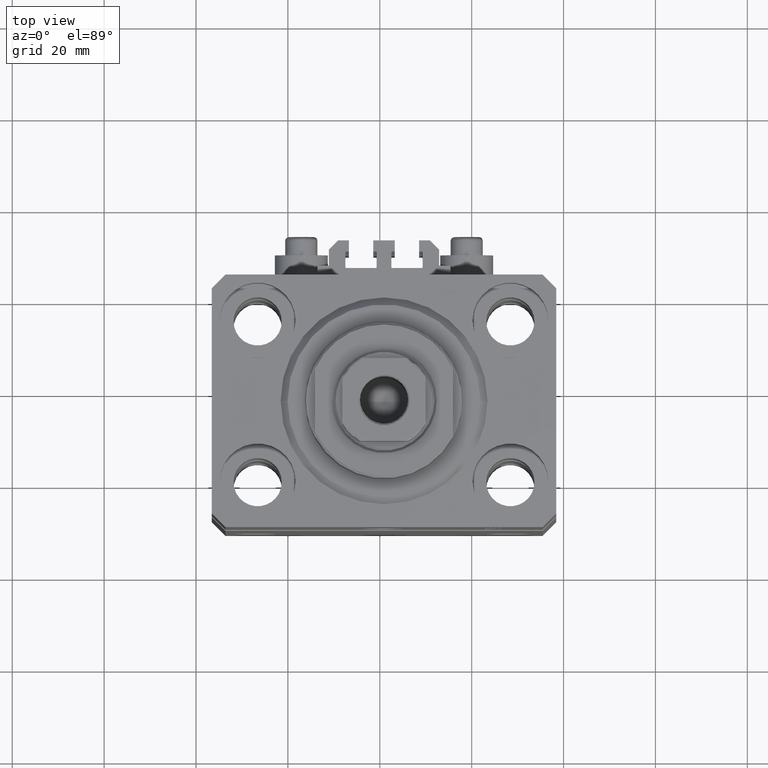
[diagram: clean part render]
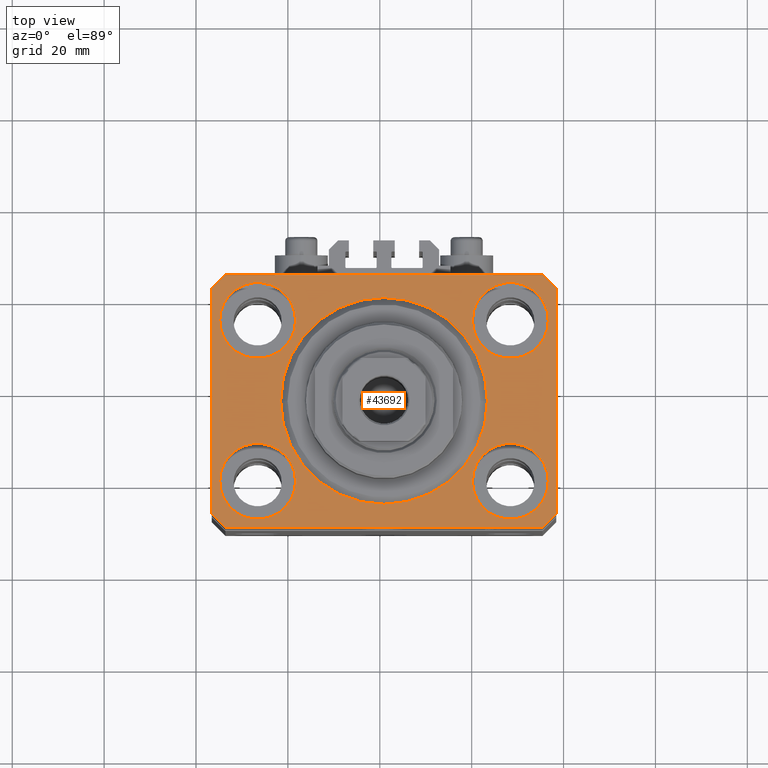
[diagram: same view with one face highlighted and labeled with its STEP entity id]
A machine part, top view. The second image highlights one B-rep face of the part: STEP entity #43692.
In plain terms, the highlighted planar face has unit normal (0, 0, 1).
Its self-contained STEP definition (entity closure, byte-faithful):
#210 = DIRECTION ( 'NONE',  ( 0.7071067811865483499, -0.7071067811865466846, 0.000000000000000000 ) ) ;
#273 = LINE ( 'NONE', #14882, #40774 ) ;
#410 = AXIS2_PLACEMENT_3D ( 'NONE', #13346, #9748, #15806 ) ;
#514 = CIRCLE ( 'NONE', #27279, 8.250000000000000000 ) ;
#892 = LINE ( 'NONE', #15730, #30948 ) ;
#1419 = DIRECTION ( 'NONE',  ( 1.000000000000000000, 0.000000000000000000, 0.000000000000000000 ) ) ;
#1692 = ORIENTED_EDGE ( 'NONE', *, *, #31004, .T. ) ;
#1741 = DIRECTION ( 'NONE',  ( 0.000000000000000000, 0.000000000000000000, 1.000000000000000000 ) ) ;
#1771 = ORIENTED_EDGE ( 'NONE', *, *, #1913, .F. ) ;
#1913 = EDGE_CURVE ( 'NONE', #42987, #6753, #19450, .T. ) ;
#1993 = DIRECTION ( 'NONE',  ( 0.000000000000000000, 0.000000000000000000, 1.000000000000000000 ) ) ;
#2194 = EDGE_CURVE ( 'NONE', #3138, #19107, #273, .T. ) ;
#2396 = VERTEX_POINT ( 'NONE', #18361 ) ;
#2435 = AXIS2_PLACEMENT_3D ( 'NONE', #4164, #29318, #11579 ) ;
#2916 = AXIS2_PLACEMENT_3D ( 'NONE', #33697, #37284, #37515 ) ;
#3138 = VERTEX_POINT ( 'NONE', #41343 ) ;
#3697 = CIRCLE ( 'NONE', #31215, 8.250000000000000000 ) ;
#4083 = CARTESIAN_POINT ( 'NONE',  ( 34.49999999999999289, -27.49999999999999645, 0.000000000000000000 ) ) ;
#4164 = CARTESIAN_POINT ( 'NONE',  ( -27.50000000000000355, -17.50000000000000000, 0.000000000000000000 ) ) ;
#4420 = VERTEX_POINT ( 'NONE', #13078 ) ;
#4866 = ORIENTED_EDGE ( 'NONE', *, *, #33391, .T. ) ;
#4870 = CARTESIAN_POINT ( 'NONE',  ( 35.75000000000000711, -17.50000000000000000, 0.000000000000000000 ) ) ;
#5349 = ORIENTED_EDGE ( 'NONE', *, *, #39760, .F. ) ;
#5728 = LINE ( 'NONE', #31603, #28746 ) ;
#5946 = EDGE_CURVE ( 'NONE', #17947, #40098, #45402, .T. ) ;
#6239 = CARTESIAN_POINT ( 'NONE',  ( 34.49999999999999289, -27.49999999999999645, 0.000000000000000000 ) ) ;
#6289 = VERTEX_POINT ( 'NONE', #4870 ) ;
#6735 = AXIS2_PLACEMENT_3D ( 'NONE', #30149, #23203, #30397 ) ;
#6753 = VERTEX_POINT ( 'NONE', #44220 ) ;
#7164 = VERTEX_POINT ( 'NONE', #16143 ) ;
#7398 = VERTEX_POINT ( 'NONE', #26851 ) ;
#7755 = DIRECTION ( 'NONE',  ( 1.000000000000000000, 0.000000000000000000, 0.000000000000000000 ) ) ;
#9748 = DIRECTION ( 'NONE',  ( 0.000000000000000000, 0.000000000000000000, 1.000000000000000000 ) ) ;
#9866 = FACE_BOUND ( 'NONE', #24503, .T. ) ;
#10500 = DIRECTION ( 'NONE',  ( 0.000000000000000000, 0.000000000000000000, 1.000000000000000000 ) ) ;
#11372 = VERTEX_POINT ( 'NONE', #39857 ) ;
#11428 = CARTESIAN_POINT ( 'NONE',  ( -35.75000000000000711, -17.50000000000000000, 0.000000000000000000 ) ) ;
#11579 = DIRECTION ( 'NONE',  ( 1.000000000000000000, 0.000000000000000000, 0.000000000000000000 ) ) ;
#11649 = DIRECTION ( 'NONE',  ( 0.000000000000000000, 0.000000000000000000, 1.000000000000000000 ) ) ;
#12163 = ORIENTED_EDGE ( 'NONE', *, *, #28683, .F. ) ;
#12373 = DIRECTION ( 'NONE',  ( 1.000000000000000000, 0.000000000000000000, 0.000000000000000000 ) ) ;
#13068 = CARTESIAN_POINT ( 'NONE',  ( 19.25000000000000000, 17.50000000000001066, 0.000000000000000000 ) ) ;
#13078 = CARTESIAN_POINT ( 'NONE',  ( 19.25000000000000000, -17.50000000000000000, 0.000000000000000000 ) ) ;
#13250 = EDGE_LOOP ( 'NONE', ( #12163, #15584 ) ) ;
#13346 = CARTESIAN_POINT ( 'NONE',  ( 27.50000000000000355, -17.50000000000000000, 0.000000000000000000 ) ) ;
#13378 = EDGE_CURVE ( 'NONE', #28438, #2396, #14186, .T. ) ;
#13687 = DIRECTION ( 'NONE',  ( 0.000000000000000000, -1.000000000000000000, 0.000000000000000000 ) ) ;
#13790 = EDGE_LOOP ( 'NONE', ( #15424, #44852 ) ) ;
#13930 = FACE_BOUND ( 'NONE', #26941, .T. ) ;
#14186 = LINE ( 'NONE', #21834, #31992 ) ;
#14665 = EDGE_CURVE ( 'NONE', #11372, #7164, #23564, .T. ) ;
#14722 = EDGE_CURVE ( 'NONE', #25840, #38554, #39644, .T. ) ;
#14882 = CARTESIAN_POINT ( 'NONE',  ( -34.49999999999998579, -27.49999999999999645, 0.000000000000000000 ) ) ;
#15265 = CARTESIAN_POINT ( 'NONE',  ( -27.50000000000000355, 17.50000000000000000, 0.000000000000000000 ) ) ;
#15424 = ORIENTED_EDGE ( 'NONE', *, *, #29209, .F. ) ;
#15584 = ORIENTED_EDGE ( 'NONE', *, *, #14665, .F. ) ;
#15730 = CARTESIAN_POINT ( 'NONE',  ( 37.49999999999999289, -24.50000000000000000, 0.000000000000000000 ) ) ;
#15771 = DIRECTION ( 'NONE',  ( 0.000000000000000000, 0.000000000000000000, 1.000000000000000000 ) ) ;
#15806 = DIRECTION ( 'NONE',  ( 1.000000000000000000, 0.000000000000000000, 0.000000000000000000 ) ) ;
#15906 = CARTESIAN_POINT ( 'NONE',  ( 27.49999999999999645, 17.50000000000001066, 0.000000000000000000 ) ) ;
#16014 = CARTESIAN_POINT ( 'NONE',  ( 0.000000000000000000, 0.000000000000000000, 0.000000000000000000 ) ) ;
#16143 = CARTESIAN_POINT ( 'NONE',  ( 22.50000000000000355, 0.000000000000000000, 0.000000000000000000 ) ) ;
#16325 = DIRECTION ( 'NONE',  ( 1.000000000000000000, 0.000000000000000000, 0.000000000000000000 ) ) ;
#17514 = LINE ( 'NONE', #46254, #23132 ) ;
#17525 = DIRECTION ( 'NONE',  ( 1.000000000000000000, 0.000000000000000000, -0.000000000000000000 ) ) ;
#17947 = VERTEX_POINT ( 'NONE', #36940 ) ;
#17960 = EDGE_CURVE ( 'NONE', #4420, #6289, #3697, .T. ) ;
#18361 = CARTESIAN_POINT ( 'NONE',  ( 34.50000000000056843, 27.50000000000000000, 0.000000000000000000 ) ) ;
#19107 = VERTEX_POINT ( 'NONE', #4083 ) ;
#19445 = VECTOR ( 'NONE', #34159, 1000.000000000000000 ) ;
#19450 = CIRCLE ( 'NONE', #46228, 8.250000000000000000 ) ;
#20650 = CARTESIAN_POINT ( 'NONE',  ( 35.74999999999999289, 17.50000000000001066, 0.000000000000000000 ) ) ;
#20735 = EDGE_CURVE ( 'NONE', #38695, #3138, #40201, .T. ) ;
#21116 = FACE_BOUND ( 'NONE', #13250, .T. ) ;
#21356 = DIRECTION ( 'NONE',  ( 0.000000000000000000, 0.000000000000000000, 1.000000000000000000 ) ) ;
#21648 = ORIENTED_EDGE ( 'NONE', *, *, #35934, .F. ) ;
#21740 = CARTESIAN_POINT ( 'NONE',  ( 0.000000000000000000, 0.000000000000000000, 0.000000000000000000 ) ) ;
#21814 = FACE_BOUND ( 'NONE', #13790, .T. ) ;
#21834 = CARTESIAN_POINT ( 'NONE',  ( 37.50000000000051870, 24.49999999999995381, 0.000000000000000000 ) ) ;
#23069 = CIRCLE ( 'NONE', #2435, 8.250000000000000000 ) ;
#23132 = VECTOR ( 'NONE', #13687, 1000.000000000000000 ) ;
#23203 = DIRECTION ( 'NONE',  ( 0.000000000000000000, 0.000000000000000000, 1.000000000000000000 ) ) ;
#23564 = CIRCLE ( 'NONE', #28172, 22.50000000000000355 ) ;
#24100 = ORIENTED_EDGE ( 'NONE', *, *, #29948, .F. ) ;
#24130 = ORIENTED_EDGE ( 'NONE', *, *, #2194, .T. ) ;
#24253 = DIRECTION ( 'NONE',  ( 1.000000000000000000, 0.000000000000000000, 0.000000000000000000 ) ) ;
#24473 = CARTESIAN_POINT ( 'NONE',  ( 27.50000000000000355, -17.50000000000000000, 0.000000000000000000 ) ) ;
#24503 = EDGE_LOOP ( 'NONE', ( #24100, #47281 ) ) ;
#25113 = DIRECTION ( 'NONE',  ( 1.000000000000000000, 0.000000000000000000, 0.000000000000000000 ) ) ;
#25449 = ORIENTED_EDGE ( 'NONE', *, *, #5946, .T. ) ;
#25840 = VERTEX_POINT ( 'NONE', #13068 ) ;
#26725 = CARTESIAN_POINT ( 'NONE',  ( -34.49999999999999289, 27.50000000000000000, 0.000000000000000000 ) ) ;
#26851 = CARTESIAN_POINT ( 'NONE',  ( -19.25000000000000355, -17.50000000000000000, 0.000000000000000000 ) ) ;
#26941 = EDGE_LOOP ( 'NONE', ( #21648, #43334 ) ) ;
#27096 = EDGE_LOOP ( 'NONE', ( #5349, #1771 ) ) ;
#27175 = CARTESIAN_POINT ( 'NONE',  ( -37.49999999999999289, 24.50000000000000000, 0.000000000000000000 ) ) ;
#27279 = AXIS2_PLACEMENT_3D ( 'NONE', #15265, #11649, #12373 ) ;
#27799 = LINE ( 'NONE', #6239, #42360 ) ;
#28172 = AXIS2_PLACEMENT_3D ( 'NONE', #21740, #10500, #25113 ) ;
#28211 = ORIENTED_EDGE ( 'NONE', *, *, #35038, .T. ) ;
#28301 = PLANE ( 'NONE',  #28815 ) ;
#28438 = VERTEX_POINT ( 'NONE', #42003 ) ;
#28683 = EDGE_CURVE ( 'NONE', #7164, #11372, #39162, .T. ) ;
#28746 = VECTOR ( 'NONE', #42618, 1000.000000000000000 ) ;
#28815 = AXIS2_PLACEMENT_3D ( 'NONE', #36201, #21356, #17525 ) ;
#29016 = VECTOR ( 'NONE', #210, 1000.000000000000000 ) ;
#29179 = CARTESIAN_POINT ( 'NONE',  ( -37.49999999999999289, -24.50000000000000000, 0.000000000000000000 ) ) ;
#29209 = EDGE_CURVE ( 'NONE', #7398, #34843, #23069, .T. ) ;
#29318 = DIRECTION ( 'NONE',  ( 0.000000000000000000, 0.000000000000000000, 1.000000000000000000 ) ) ;
#29479 = DIRECTION ( 'NONE',  ( 1.000000000000000000, 0.000000000000000000, 0.000000000000000000 ) ) ;
#29867 = CARTESIAN_POINT ( 'NONE',  ( -35.75000000000000711, 17.50000000000000000, 0.000000000000000000 ) ) ;
#29948 = EDGE_CURVE ( 'NONE', #38554, #25840, #40705, .T. ) ;
#30137 = EDGE_LOOP ( 'NONE', ( #36288, #25449, #1692, #37319, #24130, #4866, #28211, #40518 ) ) ;
#30149 = CARTESIAN_POINT ( 'NONE',  ( -27.50000000000000355, -17.50000000000000000, 0.000000000000000000 ) ) ;
#30397 = DIRECTION ( 'NONE',  ( 1.000000000000000000, 0.000000000000000000, 0.000000000000000000 ) ) ;
#30747 = AXIS2_PLACEMENT_3D ( 'NONE', #16014, #15771, #1419 ) ;
#30948 = VECTOR ( 'NONE', #34180, 1000.000000000000000 ) ;
#31004 = EDGE_CURVE ( 'NONE', #40098, #38695, #17514, .T. ) ;
#31124 = CARTESIAN_POINT ( 'NONE',  ( 37.49999999999999289, -24.50000000000000000, 0.000000000000000000 ) ) ;
#31215 = AXIS2_PLACEMENT_3D ( 'NONE', #24473, #1741, #16325 ) ;
#31603 = CARTESIAN_POINT ( 'NONE',  ( 34.50000000000056843, 27.50000000000000000, 0.000000000000000000 ) ) ;
#31992 = VECTOR ( 'NONE', #32397, 1000.000000000000114 ) ;
#32397 = DIRECTION ( 'NONE',  ( -0.7071067811865356934, 0.7071067811865594521, 0.000000000000000000 ) ) ;
#33391 = EDGE_CURVE ( 'NONE', #19107, #37916, #27799, .T. ) ;
#33697 = CARTESIAN_POINT ( 'NONE',  ( 27.49999999999999645, 17.50000000000001066, 0.000000000000000000 ) ) ;
#34159 = DIRECTION ( 'NONE',  ( -0.7071067811865471286, -0.7071067811865479058, 0.000000000000000000 ) ) ;
#34180 = DIRECTION ( 'NONE',  ( 1.076236605503979380E-14, 1.000000000000000000, 0.000000000000000000 ) ) ;
#34736 = CARTESIAN_POINT ( 'NONE',  ( -37.49999999999999289, -24.50000000000000000, 0.000000000000000000 ) ) ;
#34843 = VERTEX_POINT ( 'NONE', #11428 ) ;
#35038 = EDGE_CURVE ( 'NONE', #37916, #28438, #892, .T. ) ;
#35934 = EDGE_CURVE ( 'NONE', #6289, #4420, #37881, .T. ) ;
#36201 = CARTESIAN_POINT ( 'NONE',  ( 0.000000000000000000, 0.000000000000000000, 0.000000000000000000 ) ) ;
#36288 = ORIENTED_EDGE ( 'NONE', *, *, #37934, .T. ) ;
#36940 = CARTESIAN_POINT ( 'NONE',  ( -34.49999999999999289, 27.50000000000000000, 0.000000000000000000 ) ) ;
#37284 = DIRECTION ( 'NONE',  ( 0.000000000000000000, 0.000000000000000000, 1.000000000000000000 ) ) ;
#37319 = ORIENTED_EDGE ( 'NONE', *, *, #20735, .T. ) ;
#37515 = DIRECTION ( 'NONE',  ( 1.000000000000000000, 0.000000000000000000, 0.000000000000000000 ) ) ;
#37881 = CIRCLE ( 'NONE', #410, 8.250000000000000000 ) ;
#37916 = VERTEX_POINT ( 'NONE', #31124 ) ;
#37934 = EDGE_CURVE ( 'NONE', #2396, #17947, #5728, .T. ) ;
#38554 = VERTEX_POINT ( 'NONE', #20650 ) ;
#38695 = VERTEX_POINT ( 'NONE', #34736 ) ;
#39085 = FACE_OUTER_BOUND ( 'NONE', #30137, .T. ) ;
#39162 = CIRCLE ( 'NONE', #30747, 22.50000000000000355 ) ;
#39563 = FACE_BOUND ( 'NONE', #27096, .T. ) ;
#39644 = CIRCLE ( 'NONE', #2916, 8.249999999999992895 ) ;
#39760 = EDGE_CURVE ( 'NONE', #6753, #42987, #514, .T. ) ;
#39857 = CARTESIAN_POINT ( 'NONE',  ( -22.50000000000000355, 2.755455298081545172E-15, 0.000000000000000000 ) ) ;
#40098 = VERTEX_POINT ( 'NONE', #27175 ) ;
#40201 = LINE ( 'NONE', #29179, #29016 ) ;
#40518 = ORIENTED_EDGE ( 'NONE', *, *, #13378, .T. ) ;
#40572 = DIRECTION ( 'NONE',  ( 0.000000000000000000, 0.000000000000000000, 1.000000000000000000 ) ) ;
#40705 = CIRCLE ( 'NONE', #41471, 8.249999999999992895 ) ;
#40774 = VECTOR ( 'NONE', #29479, 1000.000000000000000 ) ;
#41343 = CARTESIAN_POINT ( 'NONE',  ( -34.49999999999998579, -27.49999999999999645, 0.000000000000000000 ) ) ;
#41471 = AXIS2_PLACEMENT_3D ( 'NONE', #15906, #40572, #7755 ) ;
#41747 = CARTESIAN_POINT ( 'NONE',  ( -27.50000000000000355, 17.50000000000000000, 0.000000000000000000 ) ) ;
#42003 = CARTESIAN_POINT ( 'NONE',  ( 37.50000000000051870, 24.49999999999995381, 0.000000000000000000 ) ) ;
#42360 = VECTOR ( 'NONE', #42889, 1000.000000000000114 ) ;
#42618 = DIRECTION ( 'NONE',  ( -1.000000000000000000, 0.000000000000000000, 0.000000000000000000 ) ) ;
#42889 = DIRECTION ( 'NONE',  ( 0.7071067811865474617, 0.7071067811865474617, 0.000000000000000000 ) ) ;
#42987 = VERTEX_POINT ( 'NONE', #29867 ) ;
#43334 = ORIENTED_EDGE ( 'NONE', *, *, #17960, .F. ) ;
#43692 = ADVANCED_FACE ( 'NONE', ( #21814, #13930, #9866, #39563, #21116, #39085 ), #28301, .T. ) ;
#44220 = CARTESIAN_POINT ( 'NONE',  ( -19.25000000000000355, 17.50000000000000000, 0.000000000000000000 ) ) ;
#44852 = ORIENTED_EDGE ( 'NONE', *, *, #47283, .F. ) ;
#45402 = LINE ( 'NONE', #26725, #19445 ) ;
#46228 = AXIS2_PLACEMENT_3D ( 'NONE', #41747, #1993, #24253 ) ;
#46254 = CARTESIAN_POINT ( 'NONE',  ( -37.49999999999999289, 24.50000000000000000, 0.000000000000000000 ) ) ;
#46535 = CIRCLE ( 'NONE', #6735, 8.250000000000000000 ) ;
#47281 = ORIENTED_EDGE ( 'NONE', *, *, #14722, .F. ) ;
#47283 = EDGE_CURVE ( 'NONE', #34843, #7398, #46535, .T. ) ;